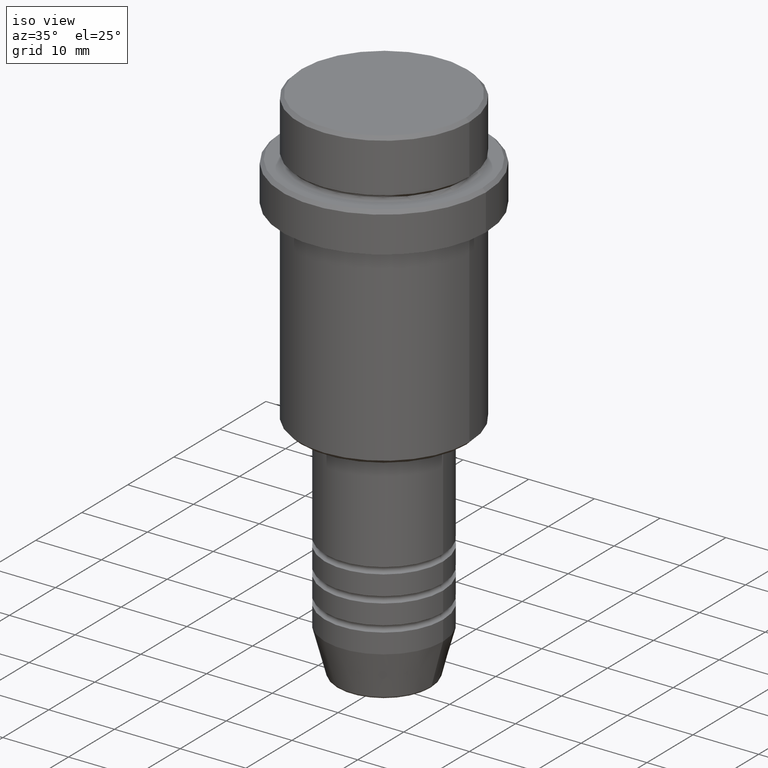
[diagram: clean part render]
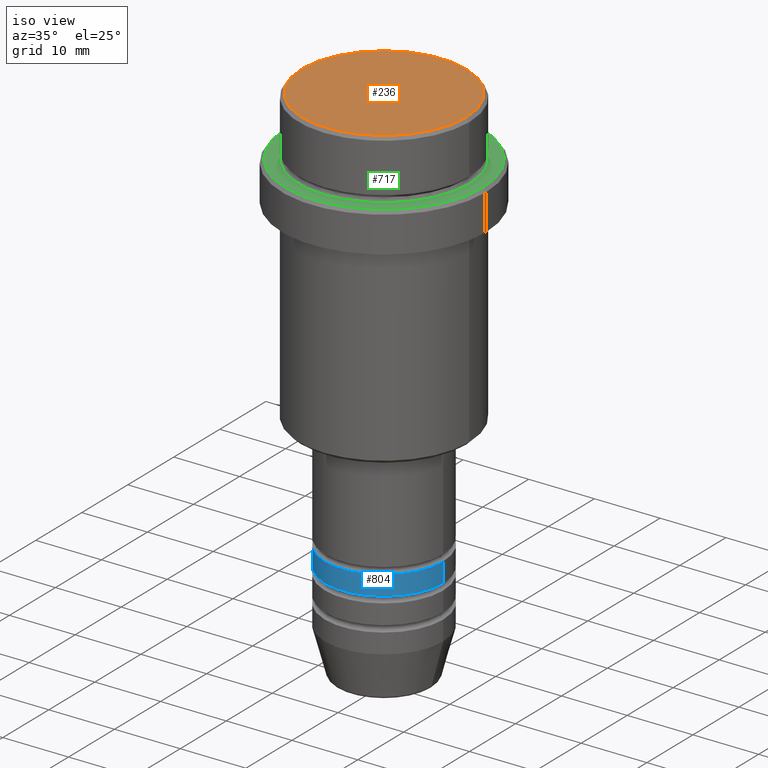
[diagram: same view with three faces highlighted in distinct colors, each labeled with its STEP entity id]
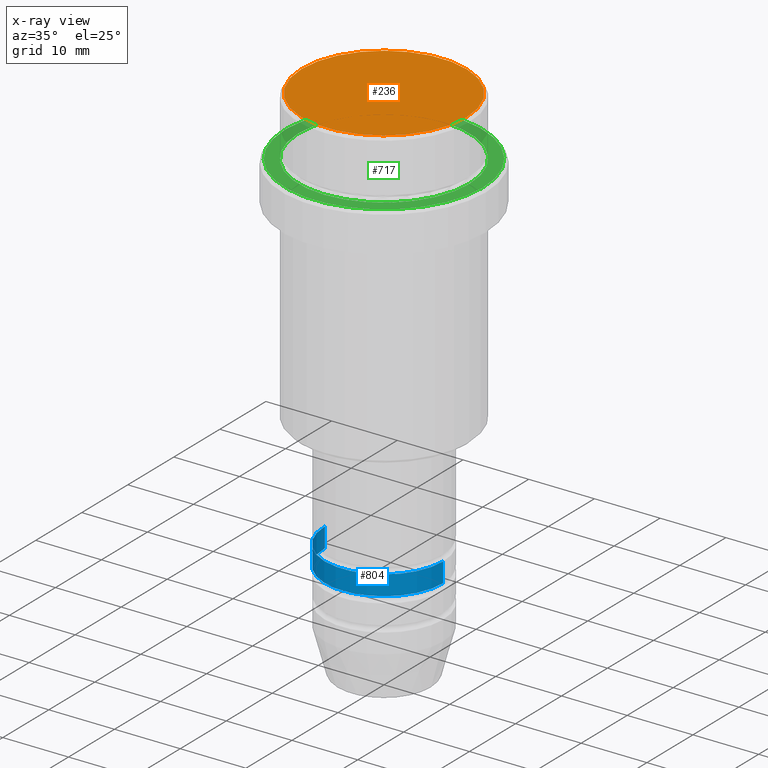
[diagram: x-ray of the same camera — body ghosted, the three highlighted faces saturated]
A machine part, iso view with three faces highlighted in distinct colors.
The next image is the same camera in x-ray (body ghosted, the three faces saturated) — at least one of them is partly hidden behind the body in this view.
Their STEP definitions:

[orange] entity #236 — the highlighted planar face has unit normal (0, -0, 1).
#48 = AXIS2_PLACEMENT_3D ( 'NONE', #350, #537, #875 ) ;
#135 = ORIENTED_EDGE ( 'NONE', *, *, #1118, .T. ) ;
#196 = DIRECTION ( 'NONE',  ( -0.000000000000000000, -0.000000000000000000, 1.000000000000000000 ) ) ;
#236 = ADVANCED_FACE ( 'NONE', ( #1339 ), #322, .T. ) ;
#248 = VERTEX_POINT ( 'NONE', #448 ) ;
#254 = AXIS2_PLACEMENT_3D ( 'NONE', #746, #196, #973 ) ;
#322 = PLANE ( 'NONE',  #48 ) ;
#350 = CARTESIAN_POINT ( 'NONE',  ( 0.000000000000000000, 0.000000000000000000, 0.000000000000000000 ) ) ;
#448 = CARTESIAN_POINT ( 'NONE',  ( 12.50000000000002665, 1.561424668912876886E-15, 0.000000000000000000 ) ) ;
#500 = AXIS2_PLACEMENT_3D ( 'NONE', #1382, #1193, #1066 ) ;
#537 = DIRECTION ( 'NONE',  ( 0.000000000000000000, -0.000000000000000000, 1.000000000000000000 ) ) ;
#576 = CIRCLE ( 'NONE', #500, 12.50000000000002665 ) ;
#713 = CIRCLE ( 'NONE', #254, 12.50000000000002665 ) ;
#746 = CARTESIAN_POINT ( 'NONE',  ( 0.000000000000000000, 0.000000000000000000, 0.000000000000000000 ) ) ;
#854 = VERTEX_POINT ( 'NONE', #869 ) ;
#869 = CARTESIAN_POINT ( 'NONE',  ( -12.50000000000002665, 0.000000000000000000, 0.000000000000000000 ) ) ;
#875 = DIRECTION ( 'NONE',  ( 1.000000000000000000, 0.000000000000000000, 0.000000000000000000 ) ) ;
#894 = EDGE_LOOP ( 'NONE', ( #135, #1031 ) ) ;
#973 = DIRECTION ( 'NONE',  ( 1.000000000000000000, 0.000000000000000000, 0.000000000000000000 ) ) ;
#1031 = ORIENTED_EDGE ( 'NONE', *, *, #1069, .T. ) ;
#1066 = DIRECTION ( 'NONE',  ( 1.000000000000000000, 0.000000000000000000, 0.000000000000000000 ) ) ;
#1069 = EDGE_CURVE ( 'NONE', #248, #854, #576, .T. ) ;
#1118 = EDGE_CURVE ( 'NONE', #854, #248, #713, .T. ) ;
#1193 = DIRECTION ( 'NONE',  ( -0.000000000000000000, -0.000000000000000000, 1.000000000000000000 ) ) ;
#1339 = FACE_OUTER_BOUND ( 'NONE', #894, .T. ) ;
#1382 = CARTESIAN_POINT ( 'NONE',  ( 0.000000000000000000, 0.000000000000000000, 0.000000000000000000 ) ) ;

[blue] entity #804 — the highlighted cylindrical surface (partial cylindrical patch) has radius 9 mm, axis along (-0, -0, 1).
#31 = DIRECTION ( 'NONE',  ( 1.000000000000000000, 0.000000000000000000, 0.000000000000000000 ) ) ;
#75 = VERTEX_POINT ( 'NONE', #1195 ) ;
#118 = VECTOR ( 'NONE', #1013, 1000.000000000000000 ) ;
#218 = ORIENTED_EDGE ( 'NONE', *, *, #493, .T. ) ;
#243 = CARTESIAN_POINT ( 'NONE',  ( -9.000000000000000000, 1.102182119232617714E-15, 0.000000000000000000 ) ) ;
#297 = ORIENTED_EDGE ( 'NONE', *, *, #621, .F. ) ;
#333 = ORIENTED_EDGE ( 'NONE', *, *, #1262, .F. ) ;
#343 = VERTEX_POINT ( 'NONE', #602 ) ;
#346 = VECTOR ( 'NONE', #654, 1000.000000000000000 ) ;
#369 = EDGE_CURVE ( 'NONE', #343, #766, #428, .T. ) ;
#428 = CIRCLE ( 'NONE', #606, 9.000000000000000000 ) ;
#454 = LINE ( 'NONE', #243, #346 ) ;
#493 = EDGE_CURVE ( 'NONE', #766, #794, #886, .T. ) ;
#534 = DIRECTION ( 'NONE',  ( 1.000000000000000000, 0.000000000000000000, 0.000000000000000000 ) ) ;
#602 = CARTESIAN_POINT ( 'NONE',  ( -9.000000000000000000, 1.102182119232617714E-15, -64.99999999999988631 ) ) ;
#606 = AXIS2_PLACEMENT_3D ( 'NONE', #910, #1214, #31 ) ;
#621 = EDGE_CURVE ( 'NONE', #75, #794, #1258, .T. ) ;
#652 = CYLINDRICAL_SURFACE ( 'NONE', #1305, 9.000000000000000000 ) ;
#654 = DIRECTION ( 'NONE',  ( -0.000000000000000000, -0.000000000000000000, 1.000000000000000000 ) ) ;
#660 = CARTESIAN_POINT ( 'NONE',  ( 0.000000000000000000, 0.000000000000000000, 0.000000000000000000 ) ) ;
#766 = VERTEX_POINT ( 'NONE', #779 ) ;
#777 = EDGE_LOOP ( 'NONE', ( #333, #1129, #218, #297 ) ) ;
#779 = CARTESIAN_POINT ( 'NONE',  ( 9.000000000000000000, 0.000000000000000000, -64.99999999999988631 ) ) ;
#794 = VERTEX_POINT ( 'NONE', #1207 ) ;
#804 = ADVANCED_FACE ( 'NONE', ( #1217 ), #652, .T. ) ;
#856 = CARTESIAN_POINT ( 'NONE',  ( 0.000000000000000000, 0.000000000000000000, -61.99999999999989342 ) ) ;
#857 = DIRECTION ( 'NONE',  ( 1.000000000000000000, 0.000000000000000000, 0.000000000000000000 ) ) ;
#886 = LINE ( 'NONE', #1322, #118 ) ;
#910 = CARTESIAN_POINT ( 'NONE',  ( 0.000000000000000000, 0.000000000000000000, -64.99999999999988631 ) ) ;
#986 = AXIS2_PLACEMENT_3D ( 'NONE', #856, #1282, #534 ) ;
#1013 = DIRECTION ( 'NONE',  ( -0.000000000000000000, -0.000000000000000000, 1.000000000000000000 ) ) ;
#1098 = DIRECTION ( 'NONE',  ( -0.000000000000000000, -0.000000000000000000, 1.000000000000000000 ) ) ;
#1129 = ORIENTED_EDGE ( 'NONE', *, *, #369, .T. ) ;
#1195 = CARTESIAN_POINT ( 'NONE',  ( -9.000000000000000000, 1.102182119232617714E-15, -61.99999999999989342 ) ) ;
#1207 = CARTESIAN_POINT ( 'NONE',  ( 9.000000000000000000, 0.000000000000000000, -61.99999999999989342 ) ) ;
#1214 = DIRECTION ( 'NONE',  ( -0.000000000000000000, -0.000000000000000000, 1.000000000000000000 ) ) ;
#1217 = FACE_OUTER_BOUND ( 'NONE', #777, .T. ) ;
#1258 = CIRCLE ( 'NONE', #986, 9.000000000000000000 ) ;
#1262 = EDGE_CURVE ( 'NONE', #343, #75, #454, .T. ) ;
#1282 = DIRECTION ( 'NONE',  ( -0.000000000000000000, -0.000000000000000000, 1.000000000000000000 ) ) ;
#1305 = AXIS2_PLACEMENT_3D ( 'NONE', #660, #1098, #857 ) ;
#1322 = CARTESIAN_POINT ( 'NONE',  ( 9.000000000000000000, 0.000000000000000000, 0.000000000000000000 ) ) ;

[green] entity #717 — the highlighted planar face has unit normal (0, -0, 1).
#30 = VERTEX_POINT ( 'NONE', #1183 ) ;
#39 = CARTESIAN_POINT ( 'NONE',  ( 15.00000000000001421, 1.867586368699714559E-15, -9.000000000000000000 ) ) ;
#63 = AXIS2_PLACEMENT_3D ( 'NONE', #1218, #426, #437 ) ;
#81 = ORIENTED_EDGE ( 'NONE', *, *, #834, .T. ) ;
#109 = FACE_BOUND ( 'NONE', #684, .T. ) ;
#119 = CIRCLE ( 'NONE', #174, 12.99999999999999467 ) ;
#123 = CARTESIAN_POINT ( 'NONE',  ( 0.000000000000000000, 0.000000000000000000, -9.000000000000000000 ) ) ;
#137 = CARTESIAN_POINT ( 'NONE',  ( 0.000000000000000000, 12.49999999999999289, -9.000000000000000000 ) ) ;
#138 = CARTESIAN_POINT ( 'NONE',  ( 12.99999999999999467, 0.000000000000000000, -9.000000000000000000 ) ) ;
#146 = CIRCLE ( 'NONE', #1374, 15.00000000000001421 ) ;
#174 = AXIS2_PLACEMENT_3D ( 'NONE', #123, #1191, #1324 ) ;
#242 = DIRECTION ( 'NONE',  ( 1.000000000000000000, 0.000000000000000000, 0.000000000000000000 ) ) ;
#280 = CARTESIAN_POINT ( 'NONE',  ( 0.000000000000000000, 0.000000000000000000, -9.000000000000000000 ) ) ;
#394 = ORIENTED_EDGE ( 'NONE', *, *, #887, .T. ) ;
#419 = DIRECTION ( 'NONE',  ( 1.000000000000000000, 0.000000000000000000, 0.000000000000000000 ) ) ;
#426 = DIRECTION ( 'NONE',  ( 0.000000000000000000, 0.000000000000000000, -1.000000000000000000 ) ) ;
#437 = DIRECTION ( 'NONE',  ( 1.000000000000000000, 0.000000000000000000, 0.000000000000000000 ) ) ;
#559 = FACE_OUTER_BOUND ( 'NONE', #864, .T. ) ;
#684 = EDGE_LOOP ( 'NONE', ( #81, #394 ) ) ;
#717 = ADVANCED_FACE ( 'NONE', ( #559, #109 ), #1228, .T. ) ;
#834 = EDGE_CURVE ( 'NONE', #1304, #1086, #119, .T. ) ;
#859 = CARTESIAN_POINT ( 'NONE',  ( -12.99999999999999467, 1.592040838891558504E-15, -9.000000000000000000 ) ) ;
#864 = EDGE_LOOP ( 'NONE', ( #1345, #1410 ) ) ;
#887 = EDGE_CURVE ( 'NONE', #1086, #1304, #937, .T. ) ;
#902 = CIRCLE ( 'NONE', #922, 15.00000000000001421 ) ;
#922 = AXIS2_PLACEMENT_3D ( 'NONE', #1152, #944, #933 ) ;
#933 = DIRECTION ( 'NONE',  ( 1.000000000000000000, 0.000000000000000000, 0.000000000000000000 ) ) ;
#937 = CIRCLE ( 'NONE', #63, 12.99999999999999467 ) ;
#944 = DIRECTION ( 'NONE',  ( -0.000000000000000000, -0.000000000000000000, 1.000000000000000000 ) ) ;
#1033 = EDGE_CURVE ( 'NONE', #30, #1327, #902, .T. ) ;
#1086 = VERTEX_POINT ( 'NONE', #859 ) ;
#1097 = AXIS2_PLACEMENT_3D ( 'NONE', #137, #1315, #242 ) ;
#1120 = EDGE_CURVE ( 'NONE', #1327, #30, #146, .T. ) ;
#1152 = CARTESIAN_POINT ( 'NONE',  ( 0.000000000000000000, 0.000000000000000000, -9.000000000000000000 ) ) ;
#1183 = CARTESIAN_POINT ( 'NONE',  ( -15.00000000000001421, 0.000000000000000000, -9.000000000000000000 ) ) ;
#1191 = DIRECTION ( 'NONE',  ( 0.000000000000000000, 0.000000000000000000, -1.000000000000000000 ) ) ;
#1218 = CARTESIAN_POINT ( 'NONE',  ( 0.000000000000000000, 0.000000000000000000, -9.000000000000000000 ) ) ;
#1228 = PLANE ( 'NONE',  #1097 ) ;
#1304 = VERTEX_POINT ( 'NONE', #138 ) ;
#1315 = DIRECTION ( 'NONE',  ( 0.000000000000000000, -0.000000000000000000, 1.000000000000000000 ) ) ;
#1324 = DIRECTION ( 'NONE',  ( 1.000000000000000000, 0.000000000000000000, 0.000000000000000000 ) ) ;
#1327 = VERTEX_POINT ( 'NONE', #39 ) ;
#1345 = ORIENTED_EDGE ( 'NONE', *, *, #1033, .T. ) ;
#1374 = AXIS2_PLACEMENT_3D ( 'NONE', #280, #1400, #419 ) ;
#1400 = DIRECTION ( 'NONE',  ( -0.000000000000000000, -0.000000000000000000, 1.000000000000000000 ) ) ;
#1410 = ORIENTED_EDGE ( 'NONE', *, *, #1120, .T. ) ;